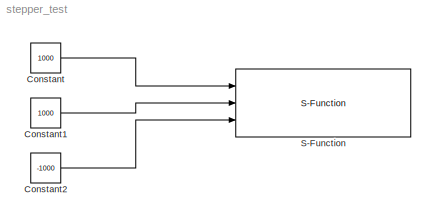
MODEL stepper_test
KIND model
BLOCK [Constant] Constant
  Value = 1000
BLOCK [Constant] Constant1
  Value = 1000
BLOCK [Constant] Constant2
  Value = -1000
BLOCK [S-Function] S-Function
  EnableBusSupport = off
  FunctionName = stepper_tester
  Ports = [3]
LINE Constant1:1 -> S-Function:2
LINE Constant2:1 -> S-Function:3
LINE Constant:1 -> S-Function:1
